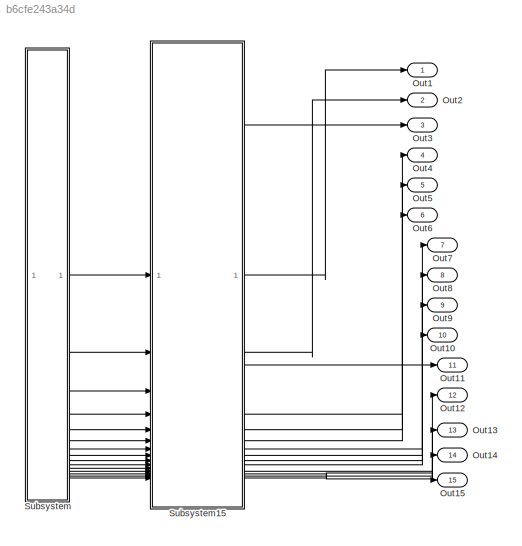
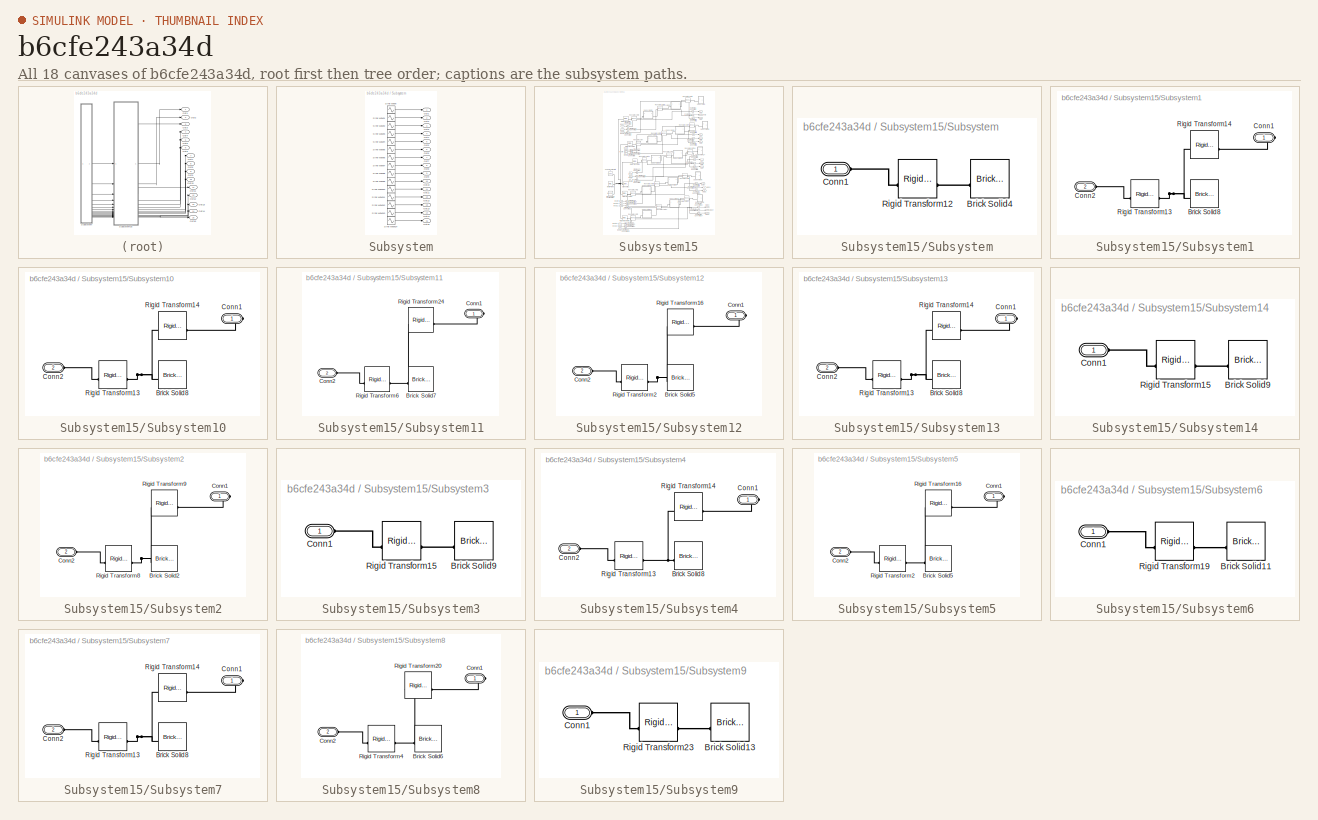
[diagram: thumbnail index - all 18 canvases of the model, root first then tree order]
MODEL slx_b6cfe243a34d
KIND model
CONFIG AbsTol = 1e-3
CONFIG EnableMultiTasking = on
CONFIG FixedStep = auto
CONFIG MaxStep = auto
CONFIG MinStep = auto
CONFIG RelTol = 1e-3
CONFIG SampleTimeConstraint = Unconstrained
CONFIG SolverName = VariableStepAuto
CONFIG StartTime = 0.0
CONFIG StopTime = 10.0
BLOCK [Outport] Out1
BLOCK [Outport] Out10
  Port = 10
BLOCK [Outport] Out11
  Port = 11
BLOCK [Outport] Out12
  Port = 12
BLOCK [Outport] Out13
  Port = 13
BLOCK [Outport] Out14
  Port = 14
BLOCK [Outport] Out15
  Port = 15
BLOCK [Outport] Out2
  Port = 2
BLOCK [Outport] Out3
  Port = 3
BLOCK [Outport] Out4
  Port = 4
BLOCK [Outport] Out5
  Port = 5
BLOCK [Outport] Out6
  Port = 6
BLOCK [Outport] Out7
  Port = 7
BLOCK [Outport] Out8
  Port = 8
BLOCK [Outport] Out9
  Port = 9
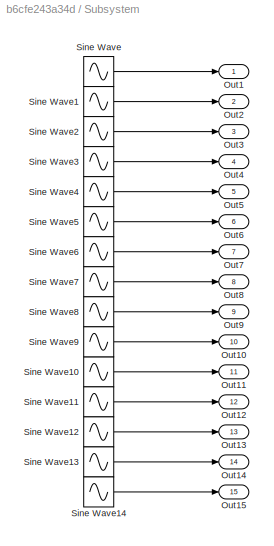
BLOCK [SubSystem] Subsystem
BLOCK [Outport] Subsystem/Out1
BLOCK [Outport] Subsystem/Out10
  Port = 10
BLOCK [Outport] Subsystem/Out11
  Port = 11
BLOCK [Outport] Subsystem/Out12
  Port = 12
BLOCK [Outport] Subsystem/Out13
  Port = 13
BLOCK [Outport] Subsystem/Out14
  Port = 14
BLOCK [Outport] Subsystem/Out15
  Port = 15
BLOCK [Outport] Subsystem/Out2
  Port = 2
BLOCK [Outport] Subsystem/Out3
  Port = 3
BLOCK [Outport] Subsystem/Out4
  Port = 4
BLOCK [Outport] Subsystem/Out5
  Port = 5
BLOCK [Outport] Subsystem/Out6
  Port = 6
BLOCK [Outport] Subsystem/Out7
  Port = 7
BLOCK [Outport] Subsystem/Out8
  Port = 8
BLOCK [Outport] Subsystem/Out9
  Port = 9
BLOCK [Sin] Subsystem/Sine Wave
  Amplitude = 0
  Frequency = 0
  SampleTime = 0
BLOCK [Sin] Subsystem/Sine Wave1
  Amplitude = 0.6
  Bias = 1
  SampleTime = 0
BLOCK [Sin] Subsystem/Sine Wave10
  Amplitude = 0.6
  Bias = 1
  SampleTime = 0
BLOCK [Sin] Subsystem/Sine Wave11
  Amplitude = 0.6
  Bias = 1
  SampleTime = 0
BLOCK [Sin] Subsystem/Sine Wave12
  Amplitude = 0
  Frequency = 0
  SampleTime = 0
BLOCK [Sin] Subsystem/Sine Wave13
  Amplitude = 0.6
  Bias = 1
  SampleTime = 0
BLOCK [Sin] Subsystem/Sine Wave14
  Amplitude = 0.6
  Bias = 1
  SampleTime = 0
BLOCK [Sin] Subsystem/Sine Wave2
  Amplitude = 0.6
  Bias = 1
  SampleTime = 0
BLOCK [Sin] Subsystem/Sine Wave3
  Amplitude = 0
  Frequency = 0
  SampleTime = 0
BLOCK [Sin] Subsystem/Sine Wave4
  Amplitude = 0.6
  Bias = 1
  SampleTime = 0
BLOCK [Sin] Subsystem/Sine Wave5
  Amplitude = 0.6
  Bias = 1
  SampleTime = 0
BLOCK [Sin] Subsystem/Sine Wave6
  Amplitude = 0
  Frequency = 0
  SampleTime = 0
BLOCK [Sin] Subsystem/Sine Wave7
  Amplitude = 0.6
  Bias = 1
  SampleTime = 0
BLOCK [Sin] Subsystem/Sine Wave8
  Amplitude = 0.6
  Bias = 1
  SampleTime = 0
  TimeSource = Use external signal
BLOCK [Sin] Subsystem/Sine Wave9
  Amplitude = 0
  Frequency = 0
  SampleTime = 0
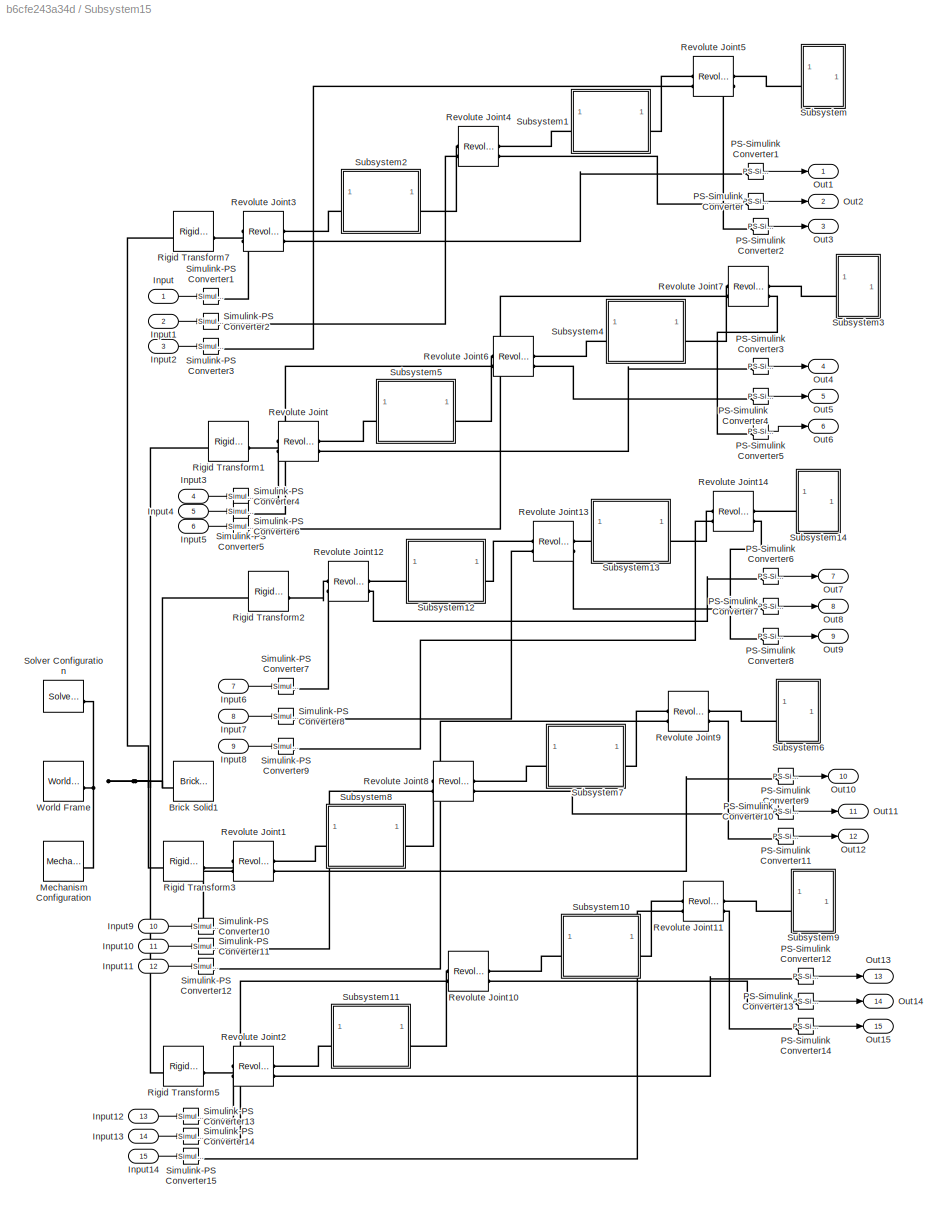
BLOCK [SubSystem] Subsystem15
BLOCK [Reference] Subsystem15/Brick Solid1  REF=sm_lib/Body Elements/Brick Solid
  NameLocation = top
  SourceBlock = sm_lib/Body Elements/Brick Solid
  SourceType = Brick Solid
BLOCK [Inport] Subsystem15/Input
BLOCK [Inport] Subsystem15/Input1
  Port = 2
BLOCK [Inport] Subsystem15/Input10
  Port = 11
BLOCK [Inport] Subsystem15/Input11
  Port = 12
BLOCK [Inport] Subsystem15/Input12
  Port = 13
BLOCK [Inport] Subsystem15/Input13
  Port = 14
BLOCK [Inport] Subsystem15/Input14
  Port = 15
BLOCK [Inport] Subsystem15/Input2
  Port = 3
BLOCK [Inport] Subsystem15/Input3
  Port = 4
BLOCK [Inport] Subsystem15/Input4
  Port = 5
BLOCK [Inport] Subsystem15/Input5
  Port = 6
BLOCK [Inport] Subsystem15/Input6
  Port = 7
BLOCK [Inport] Subsystem15/Input7
  Port = 8
BLOCK [Inport] Subsystem15/Input8
  Port = 9
BLOCK [Inport] Subsystem15/Input9
  Port = 10
BLOCK [Reference] Subsystem15/Mechanism Configuration  REF=sm_lib/Utilities/Mechanism
Configuration
  SourceBlock = sm_lib/Utilities/Mechanism\nConfiguration
  SourceType = Mechanism\nConfiguration
BLOCK [Outport] Subsystem15/Out1
BLOCK [Outport] Subsystem15/Out10
  Port = 10
BLOCK [Outport] Subsystem15/Out11
  Port = 11
BLOCK [Outport] Subsystem15/Out12
  Port = 12
BLOCK [Outport] Subsystem15/Out13
  Port = 13
BLOCK [Outport] Subsystem15/Out14
  Port = 14
BLOCK [Outport] Subsystem15/Out15
  Port = 15
BLOCK [Outport] Subsystem15/Out2
  Port = 2
BLOCK [Outport] Subsystem15/Out3
  Port = 3
BLOCK [Outport] Subsystem15/Out4
  Port = 4
BLOCK [Outport] Subsystem15/Out5
  Port = 5
BLOCK [Outport] Subsystem15/Out6
  Port = 6
BLOCK [Outport] Subsystem15/Out7
  Port = 7
BLOCK [Outport] Subsystem15/Out8
  Port = 8
BLOCK [Outport] Subsystem15/Out9
  Port = 9
BLOCK [Reference] Subsystem15/PS-Simulink Converter  REF=nesl_utility/PS-Simulink
Converter
  SourceBlock = nesl_utility/PS-Simulink\nConverter
  SourceType = PS-Simulink\nConverter
BLOCK [Reference] Subsystem15/PS-Simulink Converter1  REF=nesl_utility/PS-Simulink
Converter
  SourceBlock = nesl_utility/PS-Simulink\nConverter
  SourceType = PS-Simulink\nConverter
BLOCK [Reference] Subsystem15/PS-Simulink Converter10  REF=nesl_utility/PS-Simulink
Converter
  SourceBlock = nesl_utility/PS-Simulink\nConverter
  SourceType = PS-Simulink\nConverter
BLOCK [Reference] Subsystem15/PS-Simulink Converter11  REF=nesl_utility/PS-Simulink
Converter
  SourceBlock = nesl_utility/PS-Simulink\nConverter
  SourceType = PS-Simulink\nConverter
BLOCK [Reference] Subsystem15/PS-Simulink Converter12  REF=nesl_utility/PS-Simulink
Converter
  SourceBlock = nesl_utility/PS-Simulink\nConverter
  SourceType = PS-Simulink\nConverter
BLOCK [Reference] Subsystem15/PS-Simulink Converter13  REF=nesl_utility/PS-Simulink
Converter
  SourceBlock = nesl_utility/PS-Simulink\nConverter
  SourceType = PS-Simulink\nConverter
BLOCK [Reference] Subsystem15/PS-Simulink Converter14  REF=nesl_utility/PS-Simulink
Converter
  SourceBlock = nesl_utility/PS-Simulink\nConverter
  SourceType = PS-Simulink\nConverter
BLOCK [Reference] Subsystem15/PS-Simulink Converter2  REF=nesl_utility/PS-Simulink
Converter
  SourceBlock = nesl_utility/PS-Simulink\nConverter
  SourceType = PS-Simulink\nConverter
BLOCK [Reference] Subsystem15/PS-Simulink Converter3  REF=nesl_utility/PS-Simulink
Converter
  SourceBlock = nesl_utility/PS-Simulink\nConverter
  SourceType = PS-Simulink\nConverter
BLOCK [Reference] Subsystem15/PS-Simulink Converter4  REF=nesl_utility/PS-Simulink
Converter
  SourceBlock = nesl_utility/PS-Simulink\nConverter
  SourceType = PS-Simulink\nConverter
BLOCK [Reference] Subsystem15/PS-Simulink Converter5  REF=nesl_utility/PS-Simulink
Converter
  SourceBlock = nesl_utility/PS-Simulink\nConverter
  SourceType = PS-Simulink\nConverter
BLOCK [Reference] Subsystem15/PS-Simulink Converter6  REF=nesl_utility/PS-Simulink
Converter
  SourceBlock = nesl_utility/PS-Simulink\nConverter
  SourceType = PS-Simulink\nConverter
BLOCK [Reference] Subsystem15/PS-Simulink Converter7  REF=nesl_utility/PS-Simulink
Converter
  SourceBlock = nesl_utility/PS-Simulink\nConverter
  SourceType = PS-Simulink\nConverter
BLOCK [Reference] Subsystem15/PS-Simulink Converter8  REF=nesl_utility/PS-Simulink
Converter
  SourceBlock = nesl_utility/PS-Simulink\nConverter
  SourceType = PS-Simulink\nConverter
BLOCK [Reference] Subsystem15/PS-Simulink Converter9  REF=nesl_utility/PS-Simulink
Converter
  SourceBlock = nesl_utility/PS-Simulink\nConverter
  SourceType = PS-Simulink\nConverter
BLOCK [Reference] Subsystem15/Revolute Joint  REF=sm_lib/Joints/Revolute Joint
  SourceBlock = sm_lib/Joints/Revolute Joint
  SourceType = Revolute Joint
BLOCK [Reference] Subsystem15/Revolute Joint1  REF=sm_lib/Joints/Revolute Joint
  SourceBlock = sm_lib/Joints/Revolute Joint
  SourceType = Revolute Joint
BLOCK [Reference] Subsystem15/Revolute Joint10  REF=sm_lib/Joints/Revolute Joint
  SourceBlock = sm_lib/Joints/Revolute Joint
  SourceType = Revolute Joint
BLOCK [Reference] Subsystem15/Revolute Joint11  REF=sm_lib/Joints/Revolute Joint
  SourceBlock = sm_lib/Joints/Revolute Joint
  SourceType = Revolute Joint
BLOCK [Reference] Subsystem15/Revolute Joint12  REF=sm_lib/Joints/Revolute Joint
  SourceBlock = sm_lib/Joints/Revolute Joint
  SourceType = Revolute Joint
BLOCK [Reference] Subsystem15/Revolute Joint13  REF=sm_lib/Joints/Revolute Joint
  SourceBlock = sm_lib/Joints/Revolute Joint
  SourceType = Revolute Joint
BLOCK [Reference] Subsystem15/Revolute Joint14  REF=sm_lib/Joints/Revolute Joint
  SourceBlock = sm_lib/Joints/Revolute Joint
  SourceType = Revolute Joint
BLOCK [Reference] Subsystem15/Revolute Joint2  REF=sm_lib/Joints/Revolute Joint
  SourceBlock = sm_lib/Joints/Revolute Joint
  SourceType = Revolute Joint
BLOCK [Reference] Subsystem15/Revolute Joint3  REF=sm_lib/Joints/Revolute Joint
  SourceBlock = sm_lib/Joints/Revolute Joint
  SourceType = Revolute Joint
BLOCK [Reference] Subsystem15/Revolute Joint4  REF=sm_lib/Joints/Revolute Joint
  SourceBlock = sm_lib/Joints/Revolute Joint
  SourceType = Revolute Joint
BLOCK [Reference] Subsystem15/Revolute Joint5  REF=sm_lib/Joints/Revolute Joint
  SourceBlock = sm_lib/Joints/Revolute Joint
  SourceType = Revolute Joint
BLOCK [Reference] Subsystem15/Revolute Joint6  REF=sm_lib/Joints/Revolute Joint
  SourceBlock = sm_lib/Joints/Revolute Joint
  SourceType = Revolute Joint
BLOCK [Reference] Subsystem15/Revolute Joint7  REF=sm_lib/Joints/Revolute Joint
  SourceBlock = sm_lib/Joints/Revolute Joint
  SourceType = Revolute Joint
BLOCK [Reference] Subsystem15/Revolute Joint8  REF=sm_lib/Joints/Revolute Joint
  SourceBlock = sm_lib/Joints/Revolute Joint
  SourceType = Revolute Joint
BLOCK [Reference] Subsystem15/Revolute Joint9  REF=sm_lib/Joints/Revolute Joint
  SourceBlock = sm_lib/Joints/Revolute Joint
  SourceType = Revolute Joint
BLOCK [Reference] Subsystem15/Rigid Transform1  REF=sm_lib/Frames and
Transforms/Rigid
Transform
  SourceBlock = sm_lib/Frames and\nTransforms/Rigid\nTransform
  SourceType = Rigid\nTransform
BLOCK [Reference] Subsystem15/Rigid Transform2  REF=sm_lib/Frames and
Transforms/Rigid
Transform
  SourceBlock = sm_lib/Frames and\nTransforms/Rigid\nTransform
  SourceType = Rigid\nTransform
BLOCK [Reference] Subsystem15/Rigid Transform3  REF=sm_lib/Frames and
Transforms/Rigid
Transform
  SourceBlock = sm_lib/Frames and\nTransforms/Rigid\nTransform
  SourceType = Rigid\nTransform
BLOCK [Reference] Subsystem15/Rigid Transform5  REF=sm_lib/Frames and
Transforms/Rigid
Transform
  SourceBlock = sm_lib/Frames and\nTransforms/Rigid\nTransform
  SourceType = Rigid\nTransform
BLOCK [Reference] Subsystem15/Rigid Transform7  REF=sm_lib/Frames and
Transforms/Rigid
Transform
  SourceBlock = sm_lib/Frames and\nTransforms/Rigid\nTransform
  SourceType = Rigid\nTransform
BLOCK [Reference] Subsystem15/Simulink-PS Converter1  REF=nesl_utility/Simulink-PS
Converter
  SourceBlock = nesl_utility/Simulink-PS\nConverter
  SourceType = Simulink-PS\nConverter
BLOCK [Reference] Subsystem15/Simulink-PS Converter10  REF=nesl_utility/Simulink-PS
Converter
  SourceBlock = nesl_utility/Simulink-PS\nConverter
  SourceType = Simulink-PS\nConverter
BLOCK [Reference] Subsystem15/Simulink-PS Converter11  REF=nesl_utility/Simulink-PS
Converter
  SourceBlock = nesl_utility/Simulink-PS\nConverter
  SourceType = Simulink-PS\nConverter
BLOCK [Reference] Subsystem15/Simulink-PS Converter12  REF=nesl_utility/Simulink-PS
Converter
  SourceBlock = nesl_utility/Simulink-PS\nConverter
  SourceType = Simulink-PS\nConverter
BLOCK [Reference] Subsystem15/Simulink-PS Converter13  REF=nesl_utility/Simulink-PS
Converter
  SourceBlock = nesl_utility/Simulink-PS\nConverter
  SourceType = Simulink-PS\nConverter
BLOCK [Reference] Subsystem15/Simulink-PS Converter14  REF=nesl_utility/Simulink-PS
Converter
  SourceBlock = nesl_utility/Simulink-PS\nConverter
  SourceType = Simulink-PS\nConverter
BLOCK [Reference] Subsystem15/Simulink-PS Converter15  REF=nesl_utility/Simulink-PS
Converter
  SourceBlock = nesl_utility/Simulink-PS\nConverter
  SourceType = Simulink-PS\nConverter
BLOCK [Reference] Subsystem15/Simulink-PS Converter2  REF=nesl_utility/Simulink-PS
Converter
  SourceBlock = nesl_utility/Simulink-PS\nConverter
  SourceType = Simulink-PS\nConverter
BLOCK [Reference] Subsystem15/Simulink-PS Converter3  REF=nesl_utility/Simulink-PS
Converter
  SourceBlock = nesl_utility/Simulink-PS\nConverter
  SourceType = Simulink-PS\nConverter
BLOCK [Reference] Subsystem15/Simulink-PS Converter4  REF=nesl_utility/Simulink-PS
Converter
  SourceBlock = nesl_utility/Simulink-PS\nConverter
  SourceType = Simulink-PS\nConverter
BLOCK [Reference] Subsystem15/Simulink-PS Converter5  REF=nesl_utility/Simulink-PS
Converter
  SourceBlock = nesl_utility/Simulink-PS\nConverter
  SourceType = Simulink-PS\nConverter
BLOCK [Reference] Subsystem15/Simulink-PS Converter6  REF=nesl_utility/Simulink-PS
Converter
  SourceBlock = nesl_utility/Simulink-PS\nConverter
  SourceType = Simulink-PS\nConverter
BLOCK [Reference] Subsystem15/Simulink-PS Converter7  REF=nesl_utility/Simulink-PS
Converter
  SourceBlock = nesl_utility/Simulink-PS\nConverter
  SourceType = Simulink-PS\nConverter
BLOCK [Reference] Subsystem15/Simulink-PS Converter8  REF=nesl_utility/Simulink-PS
Converter
  SourceBlock = nesl_utility/Simulink-PS\nConverter
  SourceType = Simulink-PS\nConverter
BLOCK [Reference] Subsystem15/Simulink-PS Converter9  REF=nesl_utility/Simulink-PS
Converter
  SourceBlock = nesl_utility/Simulink-PS\nConverter
  SourceType = Simulink-PS\nConverter
BLOCK [Reference] Subsystem15/Solver Configuration  REF=nesl_utility/Solver
Configuration
  SourceBlock = nesl_utility/Solver\nConfiguration
  SourceType = Solver\nConfiguration
BLOCK [SubSystem] Subsystem15/Subsystem
BLOCK [Reference] Subsystem15/Subsystem/Brick Solid4  REF=sm_lib/Body Elements/Brick Solid
  NameLocation = top
  SourceBlock = sm_lib/Body Elements/Brick Solid
  SourceType = Brick Solid
BLOCK [PMIOPort] Subsystem15/Subsystem/Conn1
  Side = Left
BLOCK [Reference] Subsystem15/Subsystem/Rigid Transform12  REF=sm_lib/Frames and
Transforms/Rigid
Transform
  SourceBlock = sm_lib/Frames and\nTransforms/Rigid\nTransform
  SourceType = Rigid\nTransform
BLOCK [SubSystem] Subsystem15/Subsystem1
BLOCK [Reference] Subsystem15/Subsystem1/Brick Solid8  REF=sm_lib/Body Elements/Brick Solid
  NameLocation = top
  SourceBlock = sm_lib/Body Elements/Brick Solid
  SourceType = Brick Solid
BLOCK [PMIOPort] Subsystem15/Subsystem1/Conn1
  Side = Right
BLOCK [PMIOPort] Subsystem15/Subsystem1/Conn2
  Port = 2
  Side = Left
BLOCK [Reference] Subsystem15/Subsystem1/Rigid Transform13  REF=sm_lib/Frames and
Transforms/Rigid
Transform
  SourceBlock = sm_lib/Frames and\nTransforms/Rigid\nTransform
  SourceType = Rigid\nTransform
BLOCK [Reference] Subsystem15/Subsystem1/Rigid Transform14  REF=sm_lib/Frames and
Transforms/Rigid
Transform
  SourceBlock = sm_lib/Frames and\nTransforms/Rigid\nTransform
  SourceType = Rigid\nTransform
BLOCK [SubSystem] Subsystem15/Subsystem10
BLOCK [Reference] Subsystem15/Subsystem10/Brick Solid8  REF=sm_lib/Body Elements/Brick Solid
  NameLocation = top
  SourceBlock = sm_lib/Body Elements/Brick Solid
  SourceType = Brick Solid
BLOCK [PMIOPort] Subsystem15/Subsystem10/Conn1
  Side = Right
BLOCK [PMIOPort] Subsystem15/Subsystem10/Conn2
  Port = 2
  Side = Left
BLOCK [Reference] Subsystem15/Subsystem10/Rigid Transform13  REF=sm_lib/Frames and
Transforms/Rigid
Transform
  SourceBlock = sm_lib/Frames and\nTransforms/Rigid\nTransform
  SourceType = Rigid\nTransform
BLOCK [Reference] Subsystem15/Subsystem10/Rigid Transform14  REF=sm_lib/Frames and
Transforms/Rigid
Transform
  SourceBlock = sm_lib/Frames and\nTransforms/Rigid\nTransform
  SourceType = Rigid\nTransform
BLOCK [SubSystem] Subsystem15/Subsystem11
BLOCK [Reference] Subsystem15/Subsystem11/Brick Solid7  REF=sm_lib/Body Elements/Brick Solid
  NameLocation = top
  SourceBlock = sm_lib/Body Elements/Brick Solid
  SourceType = Brick Solid
BLOCK [PMIOPort] Subsystem15/Subsystem11/Conn1
  Side = Right
BLOCK [PMIOPort] Subsystem15/Subsystem11/Conn2
  Port = 2
  Side = Left
BLOCK [Reference] Subsystem15/Subsystem11/Rigid Transform24  REF=sm_lib/Frames and
Transforms/Rigid
Transform
  SourceBlock = sm_lib/Frames and\nTransforms/Rigid\nTransform
  SourceType = Rigid\nTransform
BLOCK [Reference] Subsystem15/Subsystem11/Rigid Transform6  REF=sm_lib/Frames and
Transforms/Rigid
Transform
  SourceBlock = sm_lib/Frames and\nTransforms/Rigid\nTransform
  SourceType = Rigid\nTransform
BLOCK [SubSystem] Subsystem15/Subsystem12
BLOCK [Reference] Subsystem15/Subsystem12/Brick Solid5  REF=sm_lib/Body Elements/Brick Solid
  NameLocation = top
  SourceBlock = sm_lib/Body Elements/Brick Solid
  SourceType = Brick Solid
BLOCK [PMIOPort] Subsystem15/Subsystem12/Conn1
  Side = Right
BLOCK [PMIOPort] Subsystem15/Subsystem12/Conn2
  Port = 2
  Side = Left
BLOCK [Reference] Subsystem15/Subsystem12/Rigid Transform16  REF=sm_lib/Frames and
Transforms/Rigid
Transform
  SourceBlock = sm_lib/Frames and\nTransforms/Rigid\nTransform
  SourceType = Rigid\nTransform
BLOCK [Reference] Subsystem15/Subsystem12/Rigid Transform2  REF=sm_lib/Frames and
Transforms/Rigid
Transform
  SourceBlock = sm_lib/Frames and\nTransforms/Rigid\nTransform
  SourceType = Rigid\nTransform
BLOCK [SubSystem] Subsystem15/Subsystem13
BLOCK [Reference] Subsystem15/Subsystem13/Brick Solid8  REF=sm_lib/Body Elements/Brick Solid
  NameLocation = top
  SourceBlock = sm_lib/Body Elements/Brick Solid
  SourceType = Brick Solid
BLOCK [PMIOPort] Subsystem15/Subsystem13/Conn1
  Side = Right
BLOCK [PMIOPort] Subsystem15/Subsystem13/Conn2
  Port = 2
  Side = Left
BLOCK [Reference] Subsystem15/Subsystem13/Rigid Transform13  REF=sm_lib/Frames and
Transforms/Rigid
Transform
  SourceBlock = sm_lib/Frames and\nTransforms/Rigid\nTransform
  SourceType = Rigid\nTransform
BLOCK [Reference] Subsystem15/Subsystem13/Rigid Transform14  REF=sm_lib/Frames and
Transforms/Rigid
Transform
  SourceBlock = sm_lib/Frames and\nTransforms/Rigid\nTransform
  SourceType = Rigid\nTransform
BLOCK [SubSystem] Subsystem15/Subsystem14
BLOCK [Reference] Subsystem15/Subsystem14/Brick Solid9  REF=sm_lib/Body Elements/Brick Solid
  NameLocation = top
  SourceBlock = sm_lib/Body Elements/Brick Solid
  SourceType = Brick Solid
BLOCK [PMIOPort] Subsystem15/Subsystem14/Conn1
  Side = Left
BLOCK [Reference] Subsystem15/Subsystem14/Rigid Transform15  REF=sm_lib/Frames and
Transforms/Rigid
Transform
  SourceBlock = sm_lib/Frames and\nTransforms/Rigid\nTransform
  SourceType = Rigid\nTransform
BLOCK [SubSystem] Subsystem15/Subsystem2
BLOCK [Reference] Subsystem15/Subsystem2/Brick Solid2  REF=sm_lib/Body Elements/Brick Solid
  NameLocation = top
  SourceBlock = sm_lib/Body Elements/Brick Solid
  SourceType = Brick Solid
BLOCK [PMIOPort] Subsystem15/Subsystem2/Conn1
  Side = Right
BLOCK [PMIOPort] Subsystem15/Subsystem2/Conn2
  Port = 2
  Side = Left
BLOCK [Reference] Subsystem15/Subsystem2/Rigid Transform8  REF=sm_lib/Frames and
Transforms/Rigid
Transform
  SourceBlock = sm_lib/Frames and\nTransforms/Rigid\nTransform
  SourceType = Rigid\nTransform
BLOCK [Reference] Subsystem15/Subsystem2/Rigid Transform9  REF=sm_lib/Frames and
Transforms/Rigid
Transform
  SourceBlock = sm_lib/Frames and\nTransforms/Rigid\nTransform
  SourceType = Rigid\nTransform
BLOCK [SubSystem] Subsystem15/Subsystem3
BLOCK [Reference] Subsystem15/Subsystem3/Brick Solid9  REF=sm_lib/Body Elements/Brick Solid
  NameLocation = top
  SourceBlock = sm_lib/Body Elements/Brick Solid
  SourceType = Brick Solid
BLOCK [PMIOPort] Subsystem15/Subsystem3/Conn1
  Side = Left
BLOCK [Reference] Subsystem15/Subsystem3/Rigid Transform15  REF=sm_lib/Frames and
Transforms/Rigid
Transform
  SourceBlock = sm_lib/Frames and\nTransforms/Rigid\nTransform
  SourceType = Rigid\nTransform
BLOCK [SubSystem] Subsystem15/Subsystem4
BLOCK [Reference] Subsystem15/Subsystem4/Brick Solid8  REF=sm_lib/Body Elements/Brick Solid
  NameLocation = top
  SourceBlock = sm_lib/Body Elements/Brick Solid
  SourceType = Brick Solid
BLOCK [PMIOPort] Subsystem15/Subsystem4/Conn1
  Side = Right
BLOCK [PMIOPort] Subsystem15/Subsystem4/Conn2
  Port = 2
  Side = Left
BLOCK [Reference] Subsystem15/Subsystem4/Rigid Transform13  REF=sm_lib/Frames and
Transforms/Rigid
Transform
  SourceBlock = sm_lib/Frames and\nTransforms/Rigid\nTransform
  SourceType = Rigid\nTransform
BLOCK [Reference] Subsystem15/Subsystem4/Rigid Transform14  REF=sm_lib/Frames and
Transforms/Rigid
Transform
  SourceBlock = sm_lib/Frames and\nTransforms/Rigid\nTransform
  SourceType = Rigid\nTransform
BLOCK [SubSystem] Subsystem15/Subsystem5
BLOCK [Reference] Subsystem15/Subsystem5/Brick Solid5  REF=sm_lib/Body Elements/Brick Solid
  NameLocation = top
  SourceBlock = sm_lib/Body Elements/Brick Solid
  SourceType = Brick Solid
BLOCK [PMIOPort] Subsystem15/Subsystem5/Conn1
  Side = Right
BLOCK [PMIOPort] Subsystem15/Subsystem5/Conn2
  Port = 2
  Side = Left
BLOCK [Reference] Subsystem15/Subsystem5/Rigid Transform16  REF=sm_lib/Frames and
Transforms/Rigid
Transform
  SourceBlock = sm_lib/Frames and\nTransforms/Rigid\nTransform
  SourceType = Rigid\nTransform
BLOCK [Reference] Subsystem15/Subsystem5/Rigid Transform2  REF=sm_lib/Frames and
Transforms/Rigid
Transform
  SourceBlock = sm_lib/Frames and\nTransforms/Rigid\nTransform
  SourceType = Rigid\nTransform
BLOCK [SubSystem] Subsystem15/Subsystem6
BLOCK [Reference] Subsystem15/Subsystem6/Brick Solid11  REF=sm_lib/Body Elements/Brick Solid
  NameLocation = top
  SourceBlock = sm_lib/Body Elements/Brick Solid
  SourceType = Brick Solid
BLOCK [PMIOPort] Subsystem15/Subsystem6/Conn1
  Side = Left
BLOCK [Reference] Subsystem15/Subsystem6/Rigid Transform19  REF=sm_lib/Frames and
Transforms/Rigid
Transform
  SourceBlock = sm_lib/Frames and\nTransforms/Rigid\nTransform
  SourceType = Rigid\nTransform
BLOCK [SubSystem] Subsystem15/Subsystem7
BLOCK [Reference] Subsystem15/Subsystem7/Brick Solid8  REF=sm_lib/Body Elements/Brick Solid
  NameLocation = top
  SourceBlock = sm_lib/Body Elements/Brick Solid
  SourceType = Brick Solid
BLOCK [PMIOPort] Subsystem15/Subsystem7/Conn1
  Side = Right
BLOCK [PMIOPort] Subsystem15/Subsystem7/Conn2
  Port = 2
  Side = Left
BLOCK [Reference] Subsystem15/Subsystem7/Rigid Transform13  REF=sm_lib/Frames and
Transforms/Rigid
Transform
  SourceBlock = sm_lib/Frames and\nTransforms/Rigid\nTransform
  SourceType = Rigid\nTransform
BLOCK [Reference] Subsystem15/Subsystem7/Rigid Transform14  REF=sm_lib/Frames and
Transforms/Rigid
Transform
  SourceBlock = sm_lib/Frames and\nTransforms/Rigid\nTransform
  SourceType = Rigid\nTransform
BLOCK [SubSystem] Subsystem15/Subsystem8
BLOCK [Reference] Subsystem15/Subsystem8/Brick Solid6  REF=sm_lib/Body Elements/Brick Solid
  NameLocation = top
  SourceBlock = sm_lib/Body Elements/Brick Solid
  SourceType = Brick Solid
BLOCK [PMIOPort] Subsystem15/Subsystem8/Conn1
  Side = Right
BLOCK [PMIOPort] Subsystem15/Subsystem8/Conn2
  Port = 2
  Side = Left
BLOCK [Reference] Subsystem15/Subsystem8/Rigid Transform20  REF=sm_lib/Frames and
Transforms/Rigid
Transform
  SourceBlock = sm_lib/Frames and\nTransforms/Rigid\nTransform
  SourceType = Rigid\nTransform
BLOCK [Reference] Subsystem15/Subsystem8/Rigid Transform4  REF=sm_lib/Frames and
Transforms/Rigid
Transform
  SourceBlock = sm_lib/Frames and\nTransforms/Rigid\nTransform
  SourceType = Rigid\nTransform
BLOCK [SubSystem] Subsystem15/Subsystem9
BLOCK [Reference] Subsystem15/Subsystem9/Brick Solid13  REF=sm_lib/Body Elements/Brick Solid
  NameLocation = top
  SourceBlock = sm_lib/Body Elements/Brick Solid
  SourceType = Brick Solid
BLOCK [PMIOPort] Subsystem15/Subsystem9/Conn1
  Side = Left
BLOCK [Reference] Subsystem15/Subsystem9/Rigid Transform23  REF=sm_lib/Frames and
Transforms/Rigid
Transform
  SourceBlock = sm_lib/Frames and\nTransforms/Rigid\nTransform
  SourceType = Rigid\nTransform
BLOCK [Reference] Subsystem15/World Frame  REF=sm_lib/Frames and
Transforms/World Frame
  SourceBlock = sm_lib/Frames and\nTransforms/World Frame
  SourceType = World Frame
LINE Subsystem/Sine Wave10:1 -> Subsystem/Out11:1
LINE Subsystem/Sine Wave11:1 -> Subsystem/Out12:1
LINE Subsystem/Sine Wave12:1 -> Subsystem/Out13:1
LINE Subsystem/Sine Wave13:1 -> Subsystem/Out14:1
LINE Subsystem/Sine Wave14:1 -> Subsystem/Out15:1
LINE Subsystem/Sine Wave1:1 -> Subsystem/Out2:1
LINE Subsystem/Sine Wave2:1 -> Subsystem/Out3:1
LINE Subsystem/Sine Wave3:1 -> Subsystem/Out4:1
LINE Subsystem/Sine Wave4:1 -> Subsystem/Out5:1
LINE Subsystem/Sine Wave5:1 -> Subsystem/Out6:1
LINE Subsystem/Sine Wave6:1 -> Subsystem/Out7:1
LINE Subsystem/Sine Wave7:1 -> Subsystem/Out8:1
LINE Subsystem/Sine Wave8:1 -> Subsystem/Out9:1
LINE Subsystem/Sine Wave9:1 -> Subsystem/Out10:1
LINE Subsystem/Sine Wave:1 -> Subsystem/Out1:1
LINE Subsystem15/Input10:1 -> Subsystem15/Simulink-PS Converter11:1
LINE Subsystem15/Input11:1 -> Subsystem15/Simulink-PS Converter12:1
LINE Subsystem15/Input12:1 -> Subsystem15/Simulink-PS Converter13:1
LINE Subsystem15/Input13:1 -> Subsystem15/Simulink-PS Converter14:1
LINE Subsystem15/Input14:1 -> Subsystem15/Simulink-PS Converter15:1
LINE Subsystem15/Input1:1 -> Subsystem15/Simulink-PS Converter2:1
LINE Subsystem15/Input2:1 -> Subsystem15/Simulink-PS Converter3:1
LINE Subsystem15/Input3:1 -> Subsystem15/Simulink-PS Converter4:1
LINE Subsystem15/Input4:1 -> Subsystem15/Simulink-PS Converter5:1
LINE Subsystem15/Input5:1 -> Subsystem15/Simulink-PS Converter6:1
LINE Subsystem15/Input6:1 -> Subsystem15/Simulink-PS Converter7:1
LINE Subsystem15/Input7:1 -> Subsystem15/Simulink-PS Converter8:1
LINE Subsystem15/Input8:1 -> Subsystem15/Simulink-PS Converter9:1
LINE Subsystem15/Input9:1 -> Subsystem15/Simulink-PS Converter10:1
LINE Subsystem15/Input:1 -> Subsystem15/Simulink-PS Converter1:1
LINE Subsystem15/PS-Simulink Converter10:1 -> Subsystem15/Out11:1
LINE Subsystem15/PS-Simulink Converter11:1 -> Subsystem15/Out12:1
LINE Subsystem15/PS-Simulink Converter12:1 -> Subsystem15/Out13:1
LINE Subsystem15/PS-Simulink Converter13:1 -> Subsystem15/Out14:1
LINE Subsystem15/PS-Simulink Converter14:1 -> Subsystem15/Out15:1
LINE Subsystem15/PS-Simulink Converter1:1 -> Subsystem15/Out1:1
LINE Subsystem15/PS-Simulink Converter2:1 -> Subsystem15/Out3:1
LINE Subsystem15/PS-Simulink Converter3:1 -> Subsystem15/Out4:1
LINE Subsystem15/PS-Simulink Converter4:1 -> Subsystem15/Out5:1
LINE Subsystem15/PS-Simulink Converter5:1 -> Subsystem15/Out6:1
LINE Subsystem15/PS-Simulink Converter6:1 -> Subsystem15/Out7:1
LINE Subsystem15/PS-Simulink Converter7:1 -> Subsystem15/Out8:1
LINE Subsystem15/PS-Simulink Converter8:1 -> Subsystem15/Out9:1
LINE Subsystem15/PS-Simulink Converter9:1 -> Subsystem15/Out10:1
LINE Subsystem15/PS-Simulink Converter:1 -> Subsystem15/Out2:1
LINE Subsystem15:1 -> Out1:1
LINE Subsystem15:10 -> Out10:1
LINE Subsystem15:11 -> Out11:1
LINE Subsystem15:12 -> Out12:1
LINE Subsystem15:13 -> Out13:1
LINE Subsystem15:14 -> Out14:1
LINE Subsystem15:15 -> Out15:1
LINE Subsystem15:2 -> Out2:1
LINE Subsystem15:3 -> Out3:1
LINE Subsystem15:4 -> Out4:1
LINE Subsystem15:5 -> Out5:1
LINE Subsystem15:6 -> Out6:1
LINE Subsystem15:7 -> Out7:1
LINE Subsystem15:8 -> Out8:1
LINE Subsystem15:9 -> Out9:1
LINE Subsystem:1 -> Subsystem15:1
LINE Subsystem:10 -> Subsystem15:10
LINE Subsystem:11 -> Subsystem15:11
LINE Subsystem:12 -> Subsystem15:12
LINE Subsystem:13 -> Subsystem15:13
LINE Subsystem:14 -> Subsystem15:14
LINE Subsystem:15 -> Subsystem15:15
LINE Subsystem:2 -> Subsystem15:2
LINE Subsystem:3 -> Subsystem15:3
LINE Subsystem:4 -> Subsystem15:4
LINE Subsystem:5 -> Subsystem15:5
LINE Subsystem:6 -> Subsystem15:6
LINE Subsystem:7 -> Subsystem15:7
LINE Subsystem:8 -> Subsystem15:8
LINE Subsystem:9 -> Subsystem15:9
PNET net1: Subsystem15/Brick Solid1:RConn1 -- Subsystem15/Mechanism Configuration:RConn1 -- Subsystem15/Rigid Transform1:LConn1 -- Subsystem15/Rigid Transform2:LConn1 -- Subsystem15/Rigid Transform3:LConn1 -- Subsystem15/Rigid Transform5:LConn1 -- Subsystem15/Rigid Transform7:LConn1 -- Subsystem15/Solver Configuration:RConn1 -- Subsystem15/World Frame:RConn1
PLINE Subsystem15/PS-Simulink Converter10:LConn1 -- Subsystem15/Revolute Joint8:RConn2
PLINE Subsystem15/PS-Simulink Converter11:LConn1 -- Subsystem15/Revolute Joint9:RConn2
PLINE Subsystem15/PS-Simulink Converter12:LConn1 -- Subsystem15/Revolute Joint2:RConn2
PLINE Subsystem15/PS-Simulink Converter13:LConn1 -- Subsystem15/Revolute Joint10:RConn2
PLINE Subsystem15/PS-Simulink Converter14:LConn1 -- Subsystem15/Revolute Joint11:RConn2
PLINE Subsystem15/PS-Simulink Converter1:LConn1 -- Subsystem15/Revolute Joint3:RConn2
PLINE Subsystem15/PS-Simulink Converter2:LConn1 -- Subsystem15/Revolute Joint5:RConn2
PLINE Subsystem15/PS-Simulink Converter3:LConn1 -- Subsystem15/Revolute Joint:RConn2
PLINE Subsystem15/PS-Simulink Converter4:LConn1 -- Subsystem15/Revolute Joint6:RConn2
PLINE Subsystem15/PS-Simulink Converter5:LConn1 -- Subsystem15/Revolute Joint7:RConn2
PLINE Subsystem15/PS-Simulink Converter6:LConn1 -- Subsystem15/Revolute Joint12:RConn2
PLINE Subsystem15/PS-Simulink Converter7:LConn1 -- Subsystem15/Revolute Joint13:RConn2
PLINE Subsystem15/PS-Simulink Converter8:LConn1 -- Subsystem15/Revolute Joint14:RConn2
PLINE Subsystem15/PS-Simulink Converter9:LConn1 -- Subsystem15/Revolute Joint1:RConn2
PLINE Subsystem15/PS-Simulink Converter:LConn1 -- Subsystem15/Revolute Joint4:RConn2
PLINE Subsystem15/Revolute Joint10:LConn1 -- Subsystem15/Subsystem11:RConn1
PLINE Subsystem15/Revolute Joint10:LConn2 -- Subsystem15/Simulink-PS Converter14:RConn1
PLINE Subsystem15/Revolute Joint10:RConn1 -- Subsystem15/Subsystem10:LConn1
PLINE Subsystem15/Revolute Joint11:LConn1 -- Subsystem15/Subsystem10:RConn1
PLINE Subsystem15/Revolute Joint11:LConn2 -- Subsystem15/Simulink-PS Converter15:RConn1
PLINE Subsystem15/Revolute Joint11:RConn1 -- Subsystem15/Subsystem9:LConn1
PLINE Subsystem15/Revolute Joint12:LConn1 -- Subsystem15/Rigid Transform2:RConn1
PLINE Subsystem15/Revolute Joint12:LConn2 -- Subsystem15/Simulink-PS Converter7:RConn1
PLINE Subsystem15/Revolute Joint12:RConn1 -- Subsystem15/Subsystem12:LConn1
PLINE Subsystem15/Revolute Joint13:LConn1 -- Subsystem15/Subsystem12:RConn1
PLINE Subsystem15/Revolute Joint13:LConn2 -- Subsystem15/Simulink-PS Converter8:RConn1
PLINE Subsystem15/Revolute Joint13:RConn1 -- Subsystem15/Subsystem13:LConn1
PLINE Subsystem15/Revolute Joint14:LConn1 -- Subsystem15/Subsystem13:RConn1
PLINE Subsystem15/Revolute Joint14:LConn2 -- Subsystem15/Simulink-PS Converter9:RConn1
PLINE Subsystem15/Revolute Joint14:RConn1 -- Subsystem15/Subsystem14:LConn1
PLINE Subsystem15/Revolute Joint1:LConn1 -- Subsystem15/Rigid Transform3:RConn1
PLINE Subsystem15/Revolute Joint1:LConn2 -- Subsystem15/Simulink-PS Converter10:RConn1
PLINE Subsystem15/Revolute Joint1:RConn1 -- Subsystem15/Subsystem8:LConn1
PLINE Subsystem15/Revolute Joint2:LConn1 -- Subsystem15/Rigid Transform5:RConn1
PLINE Subsystem15/Revolute Joint2:LConn2 -- Subsystem15/Simulink-PS Converter13:RConn1
PLINE Subsystem15/Revolute Joint2:RConn1 -- Subsystem15/Subsystem11:LConn1
PLINE Subsystem15/Revolute Joint3:LConn1 -- Subsystem15/Rigid Transform7:RConn1
PLINE Subsystem15/Revolute Joint3:LConn2 -- Subsystem15/Simulink-PS Converter1:RConn1
PLINE Subsystem15/Revolute Joint3:RConn1 -- Subsystem15/Subsystem2:LConn1
PLINE Subsystem15/Revolute Joint4:LConn1 -- Subsystem15/Subsystem2:RConn1
PLINE Subsystem15/Revolute Joint4:LConn2 -- Subsystem15/Simulink-PS Converter2:RConn1
PLINE Subsystem15/Revolute Joint4:RConn1 -- Subsystem15/Subsystem1:LConn1
PLINE Subsystem15/Revolute Joint5:LConn1 -- Subsystem15/Subsystem1:RConn1
PLINE Subsystem15/Revolute Joint5:LConn2 -- Subsystem15/Simulink-PS Converter3:RConn1
PLINE Subsystem15/Revolute Joint5:RConn1 -- Subsystem15/Subsystem:LConn1
PLINE Subsystem15/Revolute Joint6:LConn1 -- Subsystem15/Subsystem5:RConn1
PLINE Subsystem15/Revolute Joint6:LConn2 -- Subsystem15/Simulink-PS Converter5:RConn1
PLINE Subsystem15/Revolute Joint6:RConn1 -- Subsystem15/Subsystem4:LConn1
PLINE Subsystem15/Revolute Joint7:LConn1 -- Subsystem15/Subsystem4:RConn1
PLINE Subsystem15/Revolute Joint7:LConn2 -- Subsystem15/Simulink-PS Converter6:RConn1
PLINE Subsystem15/Revolute Joint7:RConn1 -- Subsystem15/Subsystem3:LConn1
PLINE Subsystem15/Revolute Joint8:LConn1 -- Subsystem15/Subsystem8:RConn1
PLINE Subsystem15/Revolute Joint8:LConn2 -- Subsystem15/Simulink-PS Converter11:RConn1
PLINE Subsystem15/Revolute Joint8:RConn1 -- Subsystem15/Subsystem7:LConn1
PLINE Subsystem15/Revolute Joint9:LConn1 -- Subsystem15/Subsystem7:RConn1
PLINE Subsystem15/Revolute Joint9:LConn2 -- Subsystem15/Simulink-PS Converter12:RConn1
PLINE Subsystem15/Revolute Joint9:RConn1 -- Subsystem15/Subsystem6:LConn1
PLINE Subsystem15/Revolute Joint:LConn1 -- Subsystem15/Rigid Transform1:RConn1
PLINE Subsystem15/Revolute Joint:LConn2 -- Subsystem15/Simulink-PS Converter4:RConn1
PLINE Subsystem15/Revolute Joint:RConn1 -- Subsystem15/Subsystem5:LConn1
PLINE Subsystem15/Subsystem/Brick Solid4:RConn1 -- Subsystem15/Subsystem/Rigid Transform12:RConn1
PLINE Subsystem15/Subsystem/Conn1:RConn1 -- Subsystem15/Subsystem/Rigid Transform12:LConn1
PNET net2: Subsystem15/Subsystem1/Brick Solid8:RConn1 -- Subsystem15/Subsystem1/Rigid Transform13:RConn1 -- Subsystem15/Subsystem1/Rigid Transform14:LConn1
PLINE Subsystem15/Subsystem1/Conn1:RConn1 -- Subsystem15/Subsystem1/Rigid Transform14:RConn1
PLINE Subsystem15/Subsystem1/Conn2:RConn1 -- Subsystem15/Subsystem1/Rigid Transform13:LConn1
PNET net3: Subsystem15/Subsystem10/Brick Solid8:RConn1 -- Subsystem15/Subsystem10/Rigid Transform13:RConn1 -- Subsystem15/Subsystem10/Rigid Transform14:LConn1
PLINE Subsystem15/Subsystem10/Conn1:RConn1 -- Subsystem15/Subsystem10/Rigid Transform14:RConn1
PLINE Subsystem15/Subsystem10/Conn2:RConn1 -- Subsystem15/Subsystem10/Rigid Transform13:LConn1
PNET net4: Subsystem15/Subsystem11/Brick Solid7:RConn1 -- Subsystem15/Subsystem11/Rigid Transform24:LConn1 -- Subsystem15/Subsystem11/Rigid Transform6:RConn1
PLINE Subsystem15/Subsystem11/Conn1:RConn1 -- Subsystem15/Subsystem11/Rigid Transform24:RConn1
PLINE Subsystem15/Subsystem11/Conn2:RConn1 -- Subsystem15/Subsystem11/Rigid Transform6:LConn1
PNET net5: Subsystem15/Subsystem12/Brick Solid5:RConn1 -- Subsystem15/Subsystem12/Rigid Transform16:LConn1 -- Subsystem15/Subsystem12/Rigid Transform2:RConn1
PLINE Subsystem15/Subsystem12/Conn1:RConn1 -- Subsystem15/Subsystem12/Rigid Transform16:RConn1
PLINE Subsystem15/Subsystem12/Conn2:RConn1 -- Subsystem15/Subsystem12/Rigid Transform2:LConn1
PNET net6: Subsystem15/Subsystem13/Brick Solid8:RConn1 -- Subsystem15/Subsystem13/Rigid Transform13:RConn1 -- Subsystem15/Subsystem13/Rigid Transform14:LConn1
PLINE Subsystem15/Subsystem13/Conn1:RConn1 -- Subsystem15/Subsystem13/Rigid Transform14:RConn1
PLINE Subsystem15/Subsystem13/Conn2:RConn1 -- Subsystem15/Subsystem13/Rigid Transform13:LConn1
PLINE Subsystem15/Subsystem14/Brick Solid9:RConn1 -- Subsystem15/Subsystem14/Rigid Transform15:RConn1
PLINE Subsystem15/Subsystem14/Conn1:RConn1 -- Subsystem15/Subsystem14/Rigid Transform15:LConn1
PNET net7: Subsystem15/Subsystem2/Brick Solid2:RConn1 -- Subsystem15/Subsystem2/Rigid Transform8:RConn1 -- Subsystem15/Subsystem2/Rigid Transform9:LConn1
PLINE Subsystem15/Subsystem2/Conn1:RConn1 -- Subsystem15/Subsystem2/Rigid Transform9:RConn1
PLINE Subsystem15/Subsystem2/Conn2:RConn1 -- Subsystem15/Subsystem2/Rigid Transform8:LConn1
PLINE Subsystem15/Subsystem3/Brick Solid9:RConn1 -- Subsystem15/Subsystem3/Rigid Transform15:RConn1
PLINE Subsystem15/Subsystem3/Conn1:RConn1 -- Subsystem15/Subsystem3/Rigid Transform15:LConn1
PNET net8: Subsystem15/Subsystem4/Brick Solid8:RConn1 -- Subsystem15/Subsystem4/Rigid Transform13:RConn1 -- Subsystem15/Subsystem4/Rigid Transform14:LConn1
PLINE Subsystem15/Subsystem4/Conn1:RConn1 -- Subsystem15/Subsystem4/Rigid Transform14:RConn1
PLINE Subsystem15/Subsystem4/Conn2:RConn1 -- Subsystem15/Subsystem4/Rigid Transform13:LConn1
PNET net9: Subsystem15/Subsystem5/Brick Solid5:RConn1 -- Subsystem15/Subsystem5/Rigid Transform16:LConn1 -- Subsystem15/Subsystem5/Rigid Transform2:RConn1
PLINE Subsystem15/Subsystem5/Conn1:RConn1 -- Subsystem15/Subsystem5/Rigid Transform16:RConn1
PLINE Subsystem15/Subsystem5/Conn2:RConn1 -- Subsystem15/Subsystem5/Rigid Transform2:LConn1
PLINE Subsystem15/Subsystem6/Brick Solid11:RConn1 -- Subsystem15/Subsystem6/Rigid Transform19:RConn1
PLINE Subsystem15/Subsystem6/Conn1:RConn1 -- Subsystem15/Subsystem6/Rigid Transform19:LConn1
PNET net10: Subsystem15/Subsystem7/Brick Solid8:RConn1 -- Subsystem15/Subsystem7/Rigid Transform13:RConn1 -- Subsystem15/Subsystem7/Rigid Transform14:LConn1
PLINE Subsystem15/Subsystem7/Conn1:RConn1 -- Subsystem15/Subsystem7/Rigid Transform14:RConn1
PLINE Subsystem15/Subsystem7/Conn2:RConn1 -- Subsystem15/Subsystem7/Rigid Transform13:LConn1
PNET net11: Subsystem15/Subsystem8/Brick Solid6:RConn1 -- Subsystem15/Subsystem8/Rigid Transform20:LConn1 -- Subsystem15/Subsystem8/Rigid Transform4:RConn1
PLINE Subsystem15/Subsystem8/Conn1:RConn1 -- Subsystem15/Subsystem8/Rigid Transform20:RConn1
PLINE Subsystem15/Subsystem8/Conn2:RConn1 -- Subsystem15/Subsystem8/Rigid Transform4:LConn1
PLINE Subsystem15/Subsystem9/Brick Solid13:RConn1 -- Subsystem15/Subsystem9/Rigid Transform23:RConn1
PLINE Subsystem15/Subsystem9/Conn1:RConn1 -- Subsystem15/Subsystem9/Rigid Transform23:LConn1
note: PNET lines group multi-terminal physical nets as a canonical sorted terminal list (undirected conserving connections); 2-terminal nets keep the pairwise PLINE form
